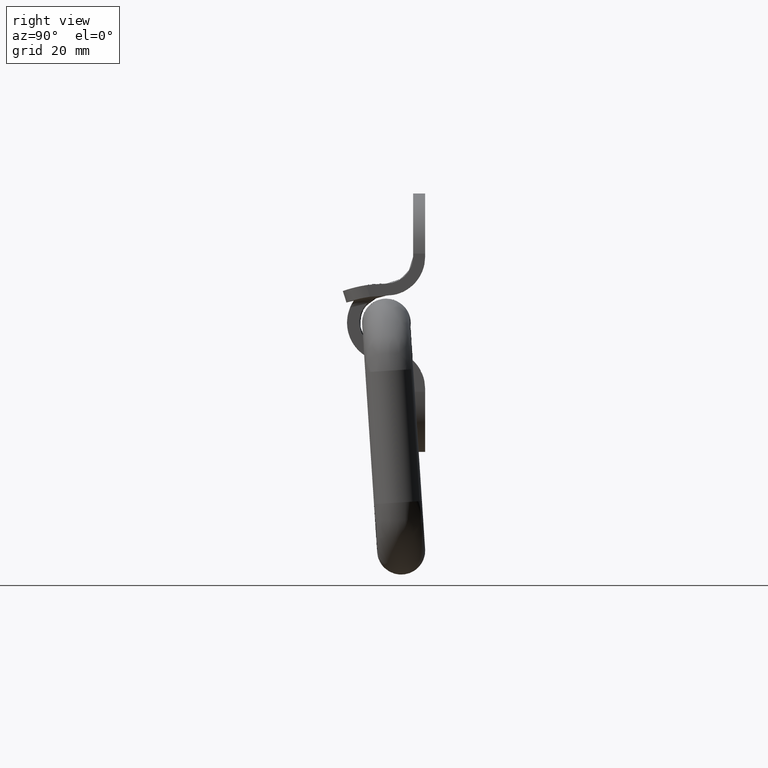
[diagram: clean part render]
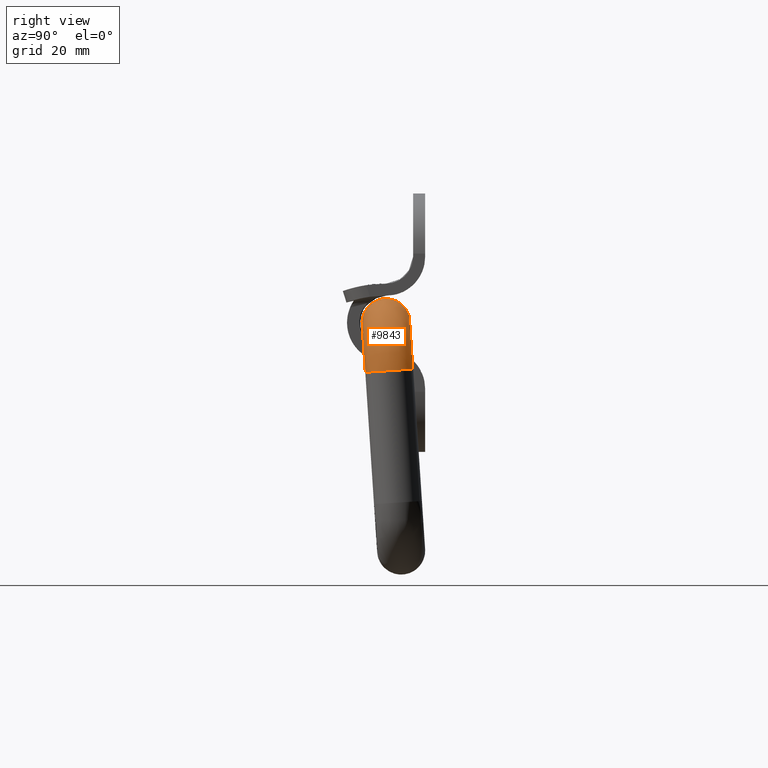
[diagram: same view with one face highlighted and labeled with its STEP entity id]
A machine part, right view. The second image highlights one B-rep face of the part: STEP entity #9843.
In plain terms, the highlighted face is a freeform B-spline surface patch.
Its self-contained STEP definition (entity closure, byte-faithful):
#8767=CARTESIAN_POINT('',(48.296907703539517,4.437637151343070,-7.724785711113832));
#8768=VERTEX_POINT('',#8767);
#8779=CARTESIAN_POINT('',(51.491334060781043,0.788903631232968,-7.965355180395322));
#8780=VERTEX_POINT('',#8779);
#8781=CARTESIAN_POINT('',(51.491334060781043,0.788903631232968,-7.965355180395322));
#8782=CARTESIAN_POINT('',(51.473490673732293,1.059476249430758,-7.947515699785126));
#8783=CARTESIAN_POINT('',(51.382220240055361,1.596952047498593,-7.912078673129557));
#8784=CARTESIAN_POINT('',(51.055039394155031,2.435116841166150,-7.856816523138244));
#8785=CARTESIAN_POINT('',(50.571015940992247,3.132093283602432,-7.810863248728302));
#8786=CARTESIAN_POINT('',(49.913176206038528,3.744660791171848,-7.770475251211575));
#8787=CARTESIAN_POINT('',(49.188306139077362,4.185162974907769,-7.741431919763723));
#8788=CARTESIAN_POINT('',(48.589846088326780,4.378261086936117,-7.728700512929217));
#8789=CARTESIAN_POINT('',(48.296907703539517,4.437637151343070,-7.724785711113832));
#8790=B_SPLINE_CURVE_WITH_KNOTS('',3,(#8781,#8782,#8783,#8784,#8785,#8786,#8787,#8788,#8789),.UNSPECIFIED.,.F.,.U.,(4,1,1,1,1,1,4),(0.000000047180733,0.815247253894200,1.630525179443196,2.690345052221394,3.342540904244502,4.320878685243683,5.217651534941848),.UNSPECIFIED.);
#8791=EDGE_CURVE('',#8780,#8768,#8790,.T.);
#8793=CARTESIAN_POINT('',(50.190613404934069,-2.427102699699247,-8.177393940802682));
#8794=VERTEX_POINT('',#8793);
#8795=CARTESIAN_POINT('',(50.190613404934069,-2.427102699699247,-8.177393940802682));
#8796=CARTESIAN_POINT('',(50.481721981388262,-2.163264513193857,-8.159998476965576));
#8797=CARTESIAN_POINT('',(50.900962973588094,-1.651353217433034,-8.126246977369711));
#8798=CARTESIAN_POINT('',(51.269394031462461,-0.869804278563556,-8.074717642197355));
#8799=CARTESIAN_POINT('',(51.480300428377269,-0.091895941364053,-8.023428340292716));
#8800=CARTESIAN_POINT('',(51.513614113971698,0.453289860345141,-7.987482975178804));
#8801=CARTESIAN_POINT('',(51.491334060781043,0.788903631232968,-7.965355180395322));
#8802=B_SPLINE_CURVE_WITH_KNOTS('',3,(#8795,#8796,#8797,#8798,#8799,#8800,#8801),.UNSPECIFIED.,.F.,.U.,(4,1,1,1,4),(0.000000048346888,1.179750152015677,1.966237021161613,2.584197640995607,3.595407769198828),.UNSPECIFIED.);
#8803=EDGE_CURVE('',#8794,#8780,#8802,.T.);
#8893=CARTESIAN_POINT('',(47.399479618455729,-3.463757715501426,-8.245743010898174));
#8894=VERTEX_POINT('',#8893);
#8895=CARTESIAN_POINT('',(47.399479618455729,-3.463757715501426,-8.245743010898174));
#8896=CARTESIAN_POINT('',(47.796728560256362,-3.473909511061690,-8.246412342462801));
#8897=CARTESIAN_POINT('',(48.482429681129020,-3.388393741390589,-8.240774089525122));
#8898=CARTESIAN_POINT('',(49.432485320078563,-3.009541505358620,-8.215795482694219));
#8899=CARTESIAN_POINT('',(49.943678358885862,-2.651198682205811,-8.192169108913854));
#8900=CARTESIAN_POINT('',(50.190613404934069,-2.427102699699247,-8.177393940802682));
#8901=B_SPLINE_CURVE_WITH_KNOTS('',3,(#8895,#8896,#8897,#8898,#8899,#8900),.UNSPECIFIED.,.F.,.U.,(4,1,1,4),(0.000000031094882,1.192075151486968,2.050359857933266,3.051704176668811),.UNSPECIFIED.);
#8902=EDGE_CURVE('',#8894,#8794,#8901,.T.);
#9180=CARTESIAN_POINT('',(39.500000000598973,-3.983460371095620,-0.363377415245222));
#9181=VERTEX_POINT('',#9180);
#9182=CARTESIAN_POINT('',(39.500000000233143,-3.742574927753394,1.411783476369952));
#9183=VERTEX_POINT('',#9182);
#9184=CARTESIAN_POINT('',(39.500000000598973,-3.983460371095620,-0.363377415245222));
#9185=CARTESIAN_POINT('',(39.500000000535387,-4.009155857486308,-0.082237727832958));
#9186=CARTESIAN_POINT('',(39.500000000404228,-4.000037959480182,0.523321377581510));
#9187=CARTESIAN_POINT('',(39.500000000288303,-3.855576437514596,1.112452782553530));
#9188=CARTESIAN_POINT('',(39.500000000233143,-3.742574927753394,1.411783476369952));
#9189=B_SPLINE_CURVE_WITH_KNOTS('',3,(#9184,#9185,#9186,#9187,#9188),.UNSPECIFIED.,.F.,.U.,(4,1,4),(0.000000011119428,0.846930260901794,1.806765029359261),.UNSPECIFIED.);
#9190=EDGE_CURVE('',#9181,#9183,#9189,.T.);
#9307=CARTESIAN_POINT('',(39.499999999998650,1.332268E-015,3.999999959249946));
#9308=VERTEX_POINT('',#9307);
#9309=CARTESIAN_POINT('',(39.500000000233143,-3.742574927753394,1.411783476369952));
#9310=CARTESIAN_POINT('',(39.500000000163389,-3.600390163780000,1.789281553593325));
#9311=CARTESIAN_POINT('',(39.500000000069782,-3.287805589444691,2.344833995606273));
#9312=CARTESIAN_POINT('',(39.499999999981320,-2.685235876585653,2.993763904233352));
#9313=CARTESIAN_POINT('',(39.499999999934268,-2.056944345121525,3.464387866339080));
#9314=CARTESIAN_POINT('',(39.499999999922203,-1.159543219482538,3.881346503190049));
#9315=CARTESIAN_POINT('',(39.499999999960870,-0.428597258103678,4.000233710859185));
#9316=CARTESIAN_POINT('',(39.499999999998650,1.332268E-015,3.999999959249946));
#9317=B_SPLINE_CURVE_WITH_KNOTS('',3,(#9309,#9310,#9311,#9312,#9313,#9314,#9315,#9316),.UNSPECIFIED.,.F.,.U.,(4,1,1,1,1,4),(0.000000063183091,1.210096945101197,1.890790395214011,2.647060338471083,3.554658025673841,4.840386388789303),.UNSPECIFIED.);
#9318=EDGE_CURVE('',#9183,#9308,#9317,.T.);
#9320=CARTESIAN_POINT('',(39.500000001531198,3.858893168539023,1.053063714977600));
#9321=VERTEX_POINT('',#9320);
#9322=CARTESIAN_POINT('',(39.499999999998650,1.332268E-015,3.999999959249946));
#9323=CARTESIAN_POINT('',(39.499999999998593,0.489195082627136,4.000402794749046));
#9324=CARTESIAN_POINT('',(39.500000000079737,1.331341413519949,3.843497761641283));
#9325=CARTESIAN_POINT('',(39.500000000332903,2.221732014394934,3.357678010918322));
#9326=CARTESIAN_POINT('',(39.500000000630877,2.913028789510104,2.783762517506301));
#9327=CARTESIAN_POINT('',(39.500000000999499,3.478408487649929,2.075965153237693));
#9328=CARTESIAN_POINT('',(39.500000001353762,3.765970093546736,1.393896297990864));
#9329=CARTESIAN_POINT('',(39.500000001531198,3.858893168539023,1.053063714977600));
#9330=B_SPLINE_CURVE_WITH_KNOTS('',3,(#9322,#9323,#9324,#9325,#9326,#9327,#9328,#9329),.UNSPECIFIED.,.F.,.U.,(4,1,1,1,1,4),(0.000000047182636,1.467468025309833,2.527305618346099,3.016433823321768,4.157820723380191,5.217651533720290),.UNSPECIFIED.);
#9331=EDGE_CURVE('',#9308,#9321,#9330,.T.);
#9769=CARTESIAN_POINT('',(39.500000000598973,-3.983460371095620,-0.363377415245222));
#9770=CARTESIAN_POINT('',(40.243246338310328,-3.983476784675204,-0.363128469383181));
#9771=CARTESIAN_POINT('',(41.406375608028092,-3.972579200359182,-0.528412873409757));
#9772=CARTESIAN_POINT('',(42.861505222989187,-3.936313848399398,-1.078451938125873));
#9773=CARTESIAN_POINT('',(44.045593069193131,-3.892188420649975,-1.747705308006052));
#9774=CARTESIAN_POINT('',(45.145096310535713,-3.832081789882226,-2.659346673191665));
#9775=CARTESIAN_POINT('',(45.982741260528712,-3.764076074627150,-3.690793991118393));
#9776=CARTESIAN_POINT('',(46.608489923170140,-3.694424273404405,-4.747207607093178));
#9777=CARTESIAN_POINT('',(47.204448397885592,-3.599802335981043,-6.182344980552140));
#9778=CARTESIAN_POINT('',(47.399852788202303,-3.516908404558946,-7.439602887710169));
#9779=CARTESIAN_POINT('',(47.399479618455729,-3.463757715501426,-8.245743010898174));
#9780=B_SPLINE_CURVE_WITH_KNOTS('',3,(#9769,#9770,#9771,#9772,#9773,#9774,#9775,#9776,#9777,#9778,#9779),.UNSPECIFIED.,.F.,.U.,(4,1,1,1,1,1,1,1,4),(0.000000098429728,2.229658800277081,3.489905767115170,4.653228873911816,6.301188720358692,7.755321485543521,8.627810352595640,9.985016831163634,12.408551425502409),.UNSPECIFIED.);
#9781=EDGE_CURVE('',#9181,#8894,#9780,.T.);
#9786=CARTESIAN_POINT('',(39.500000001531198,3.858893168539023,1.053063714977600));
#9787=CARTESIAN_POINT('',(40.183719473588830,3.858882712488235,1.053222303396788));
#9788=CARTESIAN_POINT('',(41.479106649538267,3.868880571232144,0.901584099828138));
#9789=CARTESIAN_POINT('',(43.083681455808552,3.905922317089813,0.339769417364584));
#9790=CARTESIAN_POINT('',(44.532245546336441,3.959138029834670,-0.467356923524612));
#9791=CARTESIAN_POINT('',(45.735672651336117,4.024110531833481,-1.452799288687258));
#9792=CARTESIAN_POINT('',(46.720838792322972,4.103098215585984,-2.650810871079869));
#9793=CARTESIAN_POINT('',(47.399869109607486,4.178677735475385,-3.797130600196943));
#9794=CARTESIAN_POINT('',(47.869354538570612,4.253245760416498,-4.928108916729491));
#9795=CARTESIAN_POINT('',(48.210506362032000,4.340574985986578,-6.252637233192393));
#9796=CARTESIAN_POINT('',(48.296970847694830,4.402126127213422,-7.186187587597313));
#9797=CARTESIAN_POINT('',(48.296907703539517,4.437637151343070,-7.724785711113832));
#9798=B_SPLINE_CURVE_WITH_KNOTS('',3,(#9786,#9787,#9788,#9789,#9790,#9791,#9792,#9793,#9794,#9795,#9796,#9797),.UNSPECIFIED.,.F.,.U.,(4,1,1,1,1,1,1,1,1,4),(0.000000080382852,2.051126875736060,3.886385013097954,5.073902305261823,7.017050496860845,8.528417710714077,9.715938876308048,11.011416681317669,12.198937846912370,13.818237012561710),.UNSPECIFIED.);
#9799=EDGE_CURVE('',#9321,#8768,#9798,.T.);
#9804=CARTESIAN_POINT('',(38.952971176619606,-3.977308510466739,-0.436097979691275));
#9805=CARTESIAN_POINT('',(47.952351176052112,-4.018690465574133,0.191544953654074));
#9806=CARTESIAN_POINT('',(47.326716210311922,-3.426610478176067,-8.788572566197102));
#9807=CARTESIAN_POINT('',(38.951098272763041,-3.979745204511144,-0.409404237988737));
#9808=CARTESIAN_POINT('',(47.981290128513351,-4.021268842140557,0.220387603823899));
#9809=CARTESIAN_POINT('',(47.353513129136061,-3.427161705816507,-8.790475821940373));
#9810=CARTESIAN_POINT('',(38.670406015867414,-4.344932743790372,3.591189053108419));
#9811=CARTESIAN_POINT('',(52.318373342921603,-4.407690352789096,4.543037985800887));
#9812=CARTESIAN_POINT('',(51.369569584037862,-3.509774238176640,-9.075716918621952));
#9813=CARTESIAN_POINT('',(38.663397309621040,-0.361456278173094,3.954322361838949));
#9814=CARTESIAN_POINT('',(52.426667538679055,-0.424744085864926,4.914212854243475));
#9815=CARTESIAN_POINT('',(51.469847946799121,0.480757944751711,-8.819598155204334));
#9816=CARTESIAN_POINT('',(38.657521699035243,2.978012614780002,4.258748005863142));
#9817=CARTESIAN_POINT('',(52.517453840830193,2.914280325475689,5.225379981176133));
#9818=CARTESIAN_POINT('',(51.553914333526365,3.826141859089060,-8.604886043631154));
#9819=CARTESIAN_POINT('',(38.888601697502978,3.867846537706114,1.004105054432522));
#9820=CARTESIAN_POINT('',(48.946948570667239,3.821595122743513,1.705603417261510));
#9821=CARTESIAN_POINT('',(48.247694455184629,4.483345808933451,-8.331214339310472));
#9822=CARTESIAN_POINT('',(38.890552195839284,3.875357441279662,0.976633288359431));
#9823=CARTESIAN_POINT('',(48.916810676278068,3.829253578751487,1.675893713359610));
#9824=CARTESIAN_POINT('',(48.219787338969596,4.488893131156462,-8.328904333219448));
#9832=(BOUNDED_SURFACE()B_SPLINE_SURFACE(2,2,((#9804,#9807,#9810,#9813,#9816,#9819,#9822),(#9805,#9808,#9811,#9814,#9817,#9820,#9823),(#9806,#9809,#9812,#9815,#9818,#9821,#9824)),.UNSPECIFIED.,.F.,.F.,.U.)B_SPLINE_SURFACE_WITH_KNOTS((3,3),(3,1,2,1,3),(0.0,21.866142715440009),(0.0,0.063491493453553,6.690908423906175,12.523035322704480,12.586213239552899),.UNSPECIFIED.)GEOMETRIC_REPRESENTATION_ITEM()RATIONAL_B_SPLINE_SURFACE(((0.921863776436158,0.919291504323577,0.648218385540520,0.916719232210995,0.680438487140977,0.861957125058920,0.863902396723649),(0.606632263025755,0.604939579906341,0.426559971447777,0.603246896786926,0.447762402488475,0.567210703762671,0.568490789370044),(0.926998553573238,0.924411953916423,0.651828959066661,0.921825354259608,0.684228526489814,0.866758222414113,0.868714329233368)))REPRESENTATION_ITEM('')SURFACE());
#9833=ORIENTED_EDGE('',*,*,#8791,.T.);
#9834=ORIENTED_EDGE('',*,*,#9799,.F.);
#9835=ORIENTED_EDGE('',*,*,#9331,.F.);
#9836=ORIENTED_EDGE('',*,*,#9318,.F.);
#9837=ORIENTED_EDGE('',*,*,#9190,.F.);
#9838=ORIENTED_EDGE('',*,*,#9781,.T.);
#9839=ORIENTED_EDGE('',*,*,#8902,.T.);
#9840=ORIENTED_EDGE('',*,*,#8803,.T.);
#9841=EDGE_LOOP('',(#9833,#9834,#9835,#9836,#9837,#9838,#9839,#9840));
#9842=FACE_OUTER_BOUND('',#9841,.T.);
#9843=ADVANCED_FACE('',(#9842),#9832,.T.);